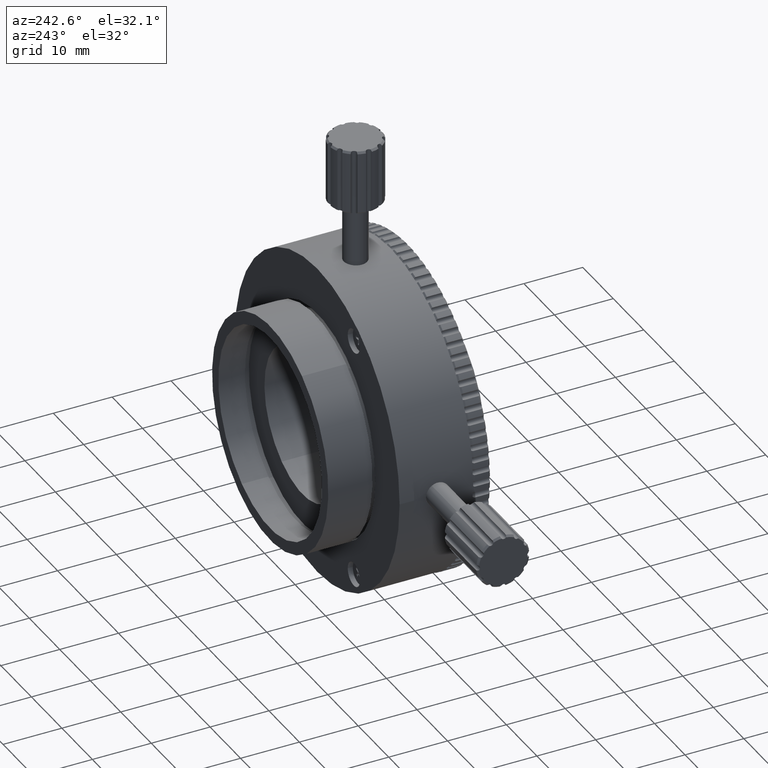
[diagram: clean part render]
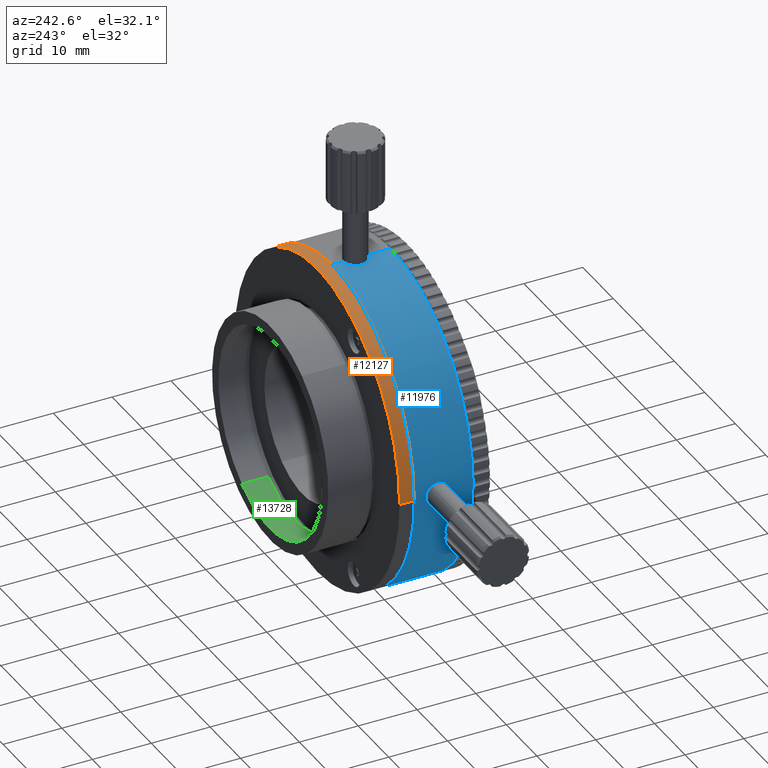
[diagram: same view with three faces highlighted in distinct colors, each labeled with its STEP entity id]
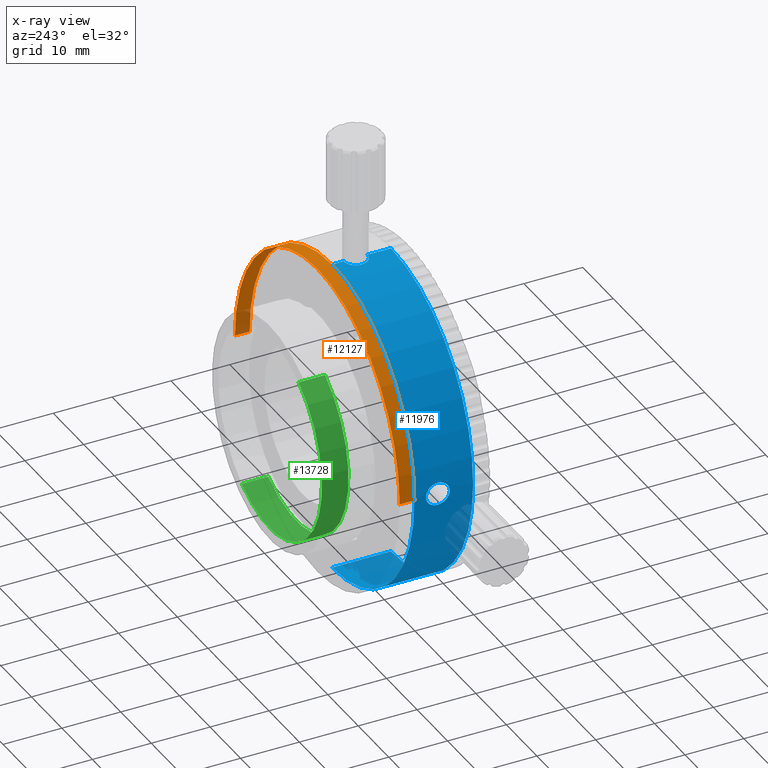
[diagram: x-ray of the same camera — body ghosted, the three highlighted faces saturated]
A machine part, auxiliary view with three faces highlighted in distinct colors.
The next image is the same camera in x-ray (body ghosted, the three faces saturated) — at least one of them is partly hidden behind the body in this view.
Their STEP definitions:

[orange] entity #12127 — the highlighted cylindrical surface (partial cylindrical patch) has radius 27 mm, axis along (-0, -1, 0).
#37 = LINE ( 'NONE', #7166, #9687 ) ;
#715 = ORIENTED_EDGE ( 'NONE', *, *, #22824, .T. ) ;
#917 = AXIS2_PLACEMENT_3D ( 'NONE', #7936, #3968, #7452 ) ;
#1451 = EDGE_CURVE ( 'NONE', #22187, #9804, #20660, .T. ) ;
#2031 = DIRECTION ( 'NONE',  ( -0.000000000000000000, -1.000000000000000000, 0.000000000000000000 ) ) ;
#2263 = ORIENTED_EDGE ( 'NONE', *, *, #11553, .F. ) ;
#3742 = CARTESIAN_POINT ( 'NONE',  ( 9.352963249104790933, 14.07014266807712843, 76.45373576090617007 ) ) ;
#3968 = DIRECTION ( 'NONE',  ( 0.000000000000000000, 1.000000000000000000, 0.000000000000000000 ) ) ;
#5603 = DIRECTION ( 'NONE',  ( 0.000000000000000000, 1.000000000000000000, 0.000000000000000000 ) ) ;
#5754 = VERTEX_POINT ( 'NONE', #17881 ) ;
#7166 = CARTESIAN_POINT ( 'NONE',  ( 36.35296324910479626, 16.57014266807712843, 76.45373576090617007 ) ) ;
#7452 = DIRECTION ( 'NONE',  ( 1.000000000000000000, 0.000000000000000000, 0.000000000000000000 ) ) ;
#7457 = FACE_OUTER_BOUND ( 'NONE', #21313, .T. ) ;
#7936 = CARTESIAN_POINT ( 'NONE',  ( 9.352963249104790933, 16.57014266807712843, 76.45373576090617007 ) ) ;
#7938 = DIRECTION ( 'NONE',  ( -1.000000000000000000, 0.000000000000000000, 0.000000000000000000 ) ) ;
#9687 = VECTOR ( 'NONE', #2031, 1000.000000000000000 ) ;
#9804 = VERTEX_POINT ( 'NONE', #10369 ) ;
#9957 = ORIENTED_EDGE ( 'NONE', *, *, #1451, .F. ) ;
#10369 = CARTESIAN_POINT ( 'NONE',  ( 36.35296324910479626, 16.57014266807712843, 76.45373576090617007 ) ) ;
#10830 = DIRECTION ( 'NONE',  ( 1.000000000000000000, 0.000000000000000000, 0.000000000000000000 ) ) ;
#11016 = VERTEX_POINT ( 'NONE', #22251 ) ;
#11553 = EDGE_CURVE ( 'NONE', #9804, #11016, #37, .T. ) ;
#12041 = AXIS2_PLACEMENT_3D ( 'NONE', #3742, #5603, #10830 ) ;
#12127 = ADVANCED_FACE ( 'NONE', ( #7457 ), #21933, .T. ) ;
#12212 = CARTESIAN_POINT ( 'NONE',  ( -17.64703675089520729, 16.57014266807712843, 76.45373576090617007 ) ) ;
#14536 = ORIENTED_EDGE ( 'NONE', *, *, #20774, .T. ) ;
#14561 = AXIS2_PLACEMENT_3D ( 'NONE', #20181, #18296, #7938 ) ;
#15342 = VECTOR ( 'NONE', #16810, 1000.000000000000000 ) ;
#16515 = CIRCLE ( 'NONE', #12041, 27.00000000000000355 ) ;
#16571 = LINE ( 'NONE', #18192, #15342 ) ;
#16810 = DIRECTION ( 'NONE',  ( -0.000000000000000000, -1.000000000000000000, 0.000000000000000000 ) ) ;
#17881 = CARTESIAN_POINT ( 'NONE',  ( -17.64703675089520729, 14.07014266807712843, 76.45373576090617007 ) ) ;
#18192 = CARTESIAN_POINT ( 'NONE',  ( -17.64703675089520729, 16.57014266807712843, 76.45373576090617007 ) ) ;
#18296 = DIRECTION ( 'NONE',  ( -0.000000000000000000, -1.000000000000000000, 0.000000000000000000 ) ) ;
#20181 = CARTESIAN_POINT ( 'NONE',  ( 9.352963249104790933, 16.57014266807712843, 76.45373576090617007 ) ) ;
#20660 = CIRCLE ( 'NONE', #917, 27.00000000000000355 ) ;
#20774 = EDGE_CURVE ( 'NONE', #5754, #11016, #16515, .T. ) ;
#21313 = EDGE_LOOP ( 'NONE', ( #2263, #9957, #715, #14536 ) ) ;
#21933 = CYLINDRICAL_SURFACE ( 'NONE', #14561, 27.00000000000000000 ) ;
#22187 = VERTEX_POINT ( 'NONE', #12212 ) ;
#22251 = CARTESIAN_POINT ( 'NONE',  ( 36.35296324910479626, 14.07014266807712843, 76.45373576090617007 ) ) ;
#22824 = EDGE_CURVE ( 'NONE', #22187, #5754, #16571, .T. ) ;

[blue] entity #11976 — the highlighted cylindrical surface (partial cylindrical patch) has radius 27 mm, axis along (-0, 1, -0).
#45 = CARTESIAN_POINT ( 'NONE',  ( 8.836905819048102018, 8.112423187109879308, 103.4491066711626104 ) ) ;
#156 = CARTESIAN_POINT ( 'NONE',  ( -17.62019859201290117, 11.67615785787208793, 77.67041712713097468 ) ) ;
#197 = CARTESIAN_POINT ( 'NONE',  ( 8.837341111493866919, 12.02791136276595196, 103.4491101502820385 ) ) ;
#235 = DIRECTION ( 'NONE',  ( -0.000000000000000000, 1.000000000000000000, -0.000000000000000000 ) ) ;
#268 = CARTESIAN_POINT ( 'NONE',  ( 9.092737570771120659, 8.058640918424838873, 103.4527847895251682 ) ) ;
#454 = CARTESIAN_POINT ( 'NONE',  ( 9.352963249104790933, 108.6097110134007835, 103.4537357609061559 ) ) ;
#530 = CARTESIAN_POINT ( 'NONE',  ( -17.61572663460999877, 8.555533150854472524, 75.15068692570514486 ) ) ;
#539 = CARTESIAN_POINT ( 'NONE',  ( 7.590175264902458530, 10.95341623767273909, 103.3961713067087231 ) ) ;
#888 = CARTESIAN_POINT ( 'NONE',  ( -17.57622445524602384, 10.07014266807589742, 78.40792346525842049 ) ) ;
#992 = CARTESIAN_POINT ( 'NONE',  ( -17.62035585593246978, 8.470517798672103638, 75.24900205073997483 ) ) ;
#1244 = CARTESIAN_POINT ( 'NONE',  ( 7.869217896915341903, 8.746010246381398900, 103.4130878537585403 ) ) ;
#1357 = CARTESIAN_POINT ( 'NONE',  ( 7.398775544753896760, 10.07014266807712843, 103.3829234652570506 ) ) ;
#1534 = EDGE_CURVE ( 'NONE', #1582, #14427, #4333, .T. ) ;
#1582 = VERTEX_POINT ( 'NONE', #15500 ) ;
#1692 = CARTESIAN_POINT ( 'NONE',  ( -17.57710269788503865, 10.32924944703174752, 78.39593351960775180 ) ) ;
#1790 = CARTESIAN_POINT ( 'NONE',  ( -17.59336406897872607, 11.07154933963422749, 74.75069287021214848 ) ) ;
#1909 = CARTESIAN_POINT ( 'NONE',  ( -17.64608480814147384, 12.08162670635805469, 76.19385433333690116 ) ) ;
#1921 = CARTESIAN_POINT ( 'NONE',  ( 9.352963249104790933, 8.045142668077135184, 103.4537357609061559 ) ) ;
#1951 = CARTESIAN_POINT ( 'NONE',  ( 9.352963249104787380, 12.09514266807717142, 103.4537357609061559 ) ) ;
#2085 = EDGE_CURVE ( 'NONE', #14427, #2381, #3922, .T. ) ;
#2381 = VERTEX_POINT ( 'NONE', #3083 ) ;
#2418 = CARTESIAN_POINT ( 'NONE',  ( -17.62901508228138425, 8.320658849020563963, 75.46168123660530114 ) ) ;
#2535 = CARTESIAN_POINT ( 'NONE',  ( 7.649574671091281530, 11.07090677270162793, 103.4000409973391754 ) ) ;
#2656 = CARTESIAN_POINT ( 'NONE',  ( 7.398775544753898536, 10.32935659784725679, 103.3829234652570364 ) ) ;
#3083 = CARTESIAN_POINT ( 'NONE',  ( 9.352963249104790933, 14.07014266807713199, 103.4537357609061559 ) ) ;
#3233 = CARTESIAN_POINT ( 'NONE',  ( 7.649676009424124068, 9.069224959368435535, 103.4000470662618056 ) ) ;
#3324 = CARTESIAN_POINT ( 'NONE',  ( -17.64704710832015522, 12.09529112459197542, 76.32547168644288149 ) ) ;
#3544 = EDGE_LOOP ( 'NONE', ( #3817, #22116, #20817, #12249, #21209, #4246, #9814 ) ) ;
#3566 = CARTESIAN_POINT ( 'NONE',  ( 8.713611123656759716, 8.152041904480007872, 103.4464266951772373 ) ) ;
#3809 = CARTESIAN_POINT ( 'NONE',  ( -17.59335345374037374, 9.069067794655811809, 74.75053299654189232 ) ) ;
#3815 = CARTESIAN_POINT ( 'NONE',  ( 8.359777557939574777, 11.81891524486320222, 103.4356714348146653 ) ) ;
#3817 = ORIENTED_EDGE ( 'NONE', *, *, #1534, .F. ) ;
#3922 = CIRCLE ( 'NONE', #6547, 26.99999999999999645 ) ;
#4004 = DIRECTION ( 'NONE',  ( -0.000000000000000000, 1.000000000000000000, -0.000000000000000000 ) ) ;
#4246 = ORIENTED_EDGE ( 'NONE', *, *, #6652, .T. ) ;
#4291 = CARTESIAN_POINT ( 'NONE',  ( 7.398775544753896760, 10.07014266807712843, 103.3829234652570506 ) ) ;
#4333 = LINE ( 'NONE', #11416, #6137 ) ;
#4349 = DIRECTION ( 'NONE',  ( 0.000000000000000000, 0.000000000000000000, 1.000000000000000000 ) ) ;
#4743 = CARTESIAN_POINT ( 'NONE',  ( 7.590021613791777533, 9.187187826884498421, 103.3961612552000702 ) ) ;
#4905 = AXIS2_PLACEMENT_3D ( 'NONE', #19364, #235, #5601 ) ;
#5040 = CARTESIAN_POINT ( 'NONE',  ( 9.352963249104790933, 4.070142668077137316, 103.4537357609061559 ) ) ;
#5170 = CARTESIAN_POINT ( 'NONE',  ( -17.62901781935710588, 11.81966654402616435, 75.46177111226572265 ) ) ;
#5294 = CARTESIAN_POINT ( 'NONE',  ( -17.58311274167399318, 10.71244267466998679, 78.31117158649716714 ) ) ;
#5438 = CARTESIAN_POINT ( 'NONE',  ( -17.57622445524609134, 9.940553402058112553, 74.49954805655519863 ) ) ;
#5544 = CARTESIAN_POINT ( 'NONE',  ( -17.58056920009981283, 9.552989911600672457, 74.56021514799572003 ) ) ;
#5601 = DIRECTION ( 'NONE',  ( 0.000000000000000000, 0.000000000000000000, 1.000000000000000000 ) ) ;
#5791 = CARTESIAN_POINT ( 'NONE',  ( -17.57622445524609134, 10.07014266807712843, 74.49954805655517021 ) ) ;
#5889 = B_SPLINE_CURVE_WITH_KNOTS ( 'NONE', 3,
 ( #1951, #16375, #9044, #197, #19783, #14402, #3815, #10904, #7764, #13345, #20476, #2535, #539, #16977, #2656, #4291 ),
 .UNSPECIFIED., .F., .F.,
 ( 4, 2, 2, 2, 2, 2, 2, 4 ),
 ( 0.007819380368100588979, 0.008209266136766264765, 0.008599151905431942286, 0.008989037674097618072, 0.009378923442763295593, 0.009768809211428971379, 0.01015869498009464716, 0.01093846651742600047 ),
 .UNSPECIFIED. ) ;
#6026 = CARTESIAN_POINT ( 'NONE',  ( -17.63301025200811978, 8.256453114652979153, 77.33204542145709581 ) ) ;
#6137 = VECTOR ( 'NONE', #20299, 1000.000000000000000 ) ;
#6142 = CARTESIAN_POINT ( 'NONE',  ( 9.352963249104790933, 8.045142668077135184, 103.4537357609061559 ) ) ;
#6206 = CARTESIAN_POINT ( 'NONE',  ( 9.352963249104790933, 4.070142668077137316, 76.45373576090617007 ) ) ;
#6248 = CARTESIAN_POINT ( 'NONE',  ( -17.59271011028185328, 9.064246826993766604, 78.16833192886973336 ) ) ;
#6547 = AXIS2_PLACEMENT_3D ( 'NONE', #12399, #4004, #21744 ) ;
#6652 = EDGE_CURVE ( 'NONE', #20109, #2381, #7803, .T. ) ;
#7133 = EDGE_CURVE ( 'NONE', #1582, #23069, #17449, .T. ) ;
#7160 = CARTESIAN_POINT ( 'NONE',  ( -17.64607107533994679, 12.08143173502458900, 76.71525487639429741 ) ) ;
#7268 = CARTESIAN_POINT ( 'NONE',  ( -17.62960555423194009, 11.83085609411661565, 77.45243875579011217 ) ) ;
#7355 = VECTOR ( 'NONE', #11301, 1000.000000000000000 ) ;
#7764 = CARTESIAN_POINT ( 'NONE',  ( 8.047621447926783134, 11.58252613100681927, 103.4223117652063308 ) ) ;
#7803 = LINE ( 'NONE', #454, #7355 ) ;
#7825 = DIRECTION ( 'NONE',  ( -0.000000000000000000, 1.000000000000000000, -0.000000000000000000 ) ) ;
#7882 = CARTESIAN_POINT ( 'NONE',  ( 9.352963249104787380, 12.09514266807717142, 103.4537357609061559 ) ) ;
#7997 = CARTESIAN_POINT ( 'NONE',  ( -17.63306146349438919, 8.255640410018482811, 75.57703044670600434 ) ) ;
#8096 = CARTESIAN_POINT ( 'NONE',  ( -17.58308965573528582, 9.428726556136831860, 78.31151457178545172 ) ) ;
#8473 = ORIENTED_EDGE ( 'NONE', *, *, #14910, .F. ) ;
#8530 = LINE ( 'NONE', #15982, #21040 ) ;
#8642 = CYLINDRICAL_SURFACE ( 'NONE', #4905, 26.99999999999999645 ) ;
#8684 = CARTESIAN_POINT ( 'NONE',  ( 7.398775544753895872, 9.940575445939726862, 103.3829234652570221 ) ) ;
#8813 = VERTEX_POINT ( 'NONE', #19936 ) ;
#8878 = CARTESIAN_POINT ( 'NONE',  ( -17.58948947741601287, 10.95398813999963217, 74.69120864829946527 ) ) ;
#9044 = CARTESIAN_POINT ( 'NONE',  ( 9.091122695494158634, 12.08134702989930709, 103.4527643385393390 ) ) ;
#9730 = CARTESIAN_POINT ( 'NONE',  ( -17.62031386946853573, 8.471282936468039537, 77.65938175341388217 ) ) ;
#9814 = ORIENTED_EDGE ( 'NONE', *, *, #2085, .F. ) ;
#10080 = CARTESIAN_POINT ( 'NONE',  ( 7.789139572329929706, 8.849127152528515339, 103.4085003841402965 ) ) ;
#10638 = CARTESIAN_POINT ( 'NONE',  ( -17.59266858345749185, 11.07444669520516989, 78.16894876598736630 ) ) ;
#10648 = CARTESIAN_POINT ( 'NONE',  ( 8.475923369911505745, 8.255815747838509466, 103.4397494728958975 ) ) ;
#10724 = CARTESIAN_POINT ( 'NONE',  ( 9.352963249104794485, 14.07014266807713199, 49.45373576090617718 ) ) ;
#10897 = CARTESIAN_POINT ( 'NONE',  ( -17.60180892100918015, 8.848947312061079984, 74.89004117313656650 ) ) ;
#10904 = CARTESIAN_POINT ( 'NONE',  ( 8.147628117173203677, 11.66925725197649655, 103.4270269532653685 ) ) ;
#11111 = ORIENTED_EDGE ( 'NONE', *, *, #11298, .F. ) ;
#11112 = CARTESIAN_POINT ( 'NONE',  ( -17.64239538185961109, 8.112604573030683497, 76.97043344162263168 ) ) ;
#11298 = EDGE_CURVE ( 'NONE', #22537, #8813, #14067, .T. ) ;
#11301 = DIRECTION ( 'NONE',  ( -0.000000000000000000, 1.000000000000000000, -0.000000000000000000 ) ) ;
#11416 = CARTESIAN_POINT ( 'NONE',  ( 9.352963249104794485, 108.6097110134007835, 49.45373576090617718 ) ) ;
#11601 = CARTESIAN_POINT ( 'NONE',  ( -17.64703928364118468, 8.045106365383368541, 76.32470903997410971 ) ) ;
#11946 = CARTESIAN_POINT ( 'NONE',  ( 8.049703750713037564, 8.555729645818306750, 103.4224153766451622 ) ) ;
#11976 = ADVANCED_FACE ( 'NONE', ( #12229, #22991 ), #8642, .T. ) ;
#12155 = CARTESIAN_POINT ( 'NONE',  ( -17.64702622034220525, 12.09499173005971251, 76.58632393384596071 ) ) ;
#12229 = FACE_OUTER_BOUND ( 'NONE', #3544, .T. ) ;
#12249 = ORIENTED_EDGE ( 'NONE', *, *, #12753, .F. ) ;
#12260 = CARTESIAN_POINT ( 'NONE',  ( -17.61565465495326777, 11.58332957555449916, 75.14925190446615488 ) ) ;
#12399 = CARTESIAN_POINT ( 'NONE',  ( 9.352963249104790933, 14.07014266807713199, 76.45373576090617007 ) ) ;
#12504 = CARTESIAN_POINT ( 'NONE',  ( -17.57622445524610200, 10.20018003064514289, 78.40792346525711309 ) ) ;
#12533 = CARTESIAN_POINT ( 'NONE',  ( -17.57711719243554072, 9.809375439857699774, 74.51173732732264909 ) ) ;
#12650 = CARTESIAN_POINT ( 'NONE',  ( -17.58309701968739702, 9.428535954966175581, 74.59607232472626492 ) ) ;
#12753 = EDGE_CURVE ( 'NONE', #19293, #14666, #13169, .T. ) ;
#13169 = B_SPLINE_CURVE_WITH_KNOTS ( 'NONE', 3,
 ( #1357, #8684, #19189, #15808, #20713, #4743, #3233, #10080, #1244, #11946, #19071, #19531, #10648, #3566, #45, #268, #16136, #1921 ),
 .UNSPECIFIED., .F., .F.,
 ( 4, 2, 2, 2, 2, 2, 2, 2, 4 ),
 ( 0.01093846651742600047, 0.01132823273131516179, 0.01171799894520432310, 0.01210776515909348441, 0.01249753137298264573, 0.01288729758687180704, 0.01327706380076096836, 0.01366683001465012967, 0.01405659622853929099 ),
 .UNSPECIFIED. ) ;
#13337 = CARTESIAN_POINT ( 'NONE',  ( -17.60171694560570543, 8.841367161872854652, 78.02783478019213703 ) ) ;
#13345 = CARTESIAN_POINT ( 'NONE',  ( 7.868875292780542097, 11.39374588255110687, 103.4130660911556561 ) ) ;
#14020 = CARTESIAN_POINT ( 'NONE',  ( -17.57622445524602384, 10.07014266807589742, 78.40792346525842049 ) ) ;
#14067 = B_SPLINE_CURVE_WITH_KNOTS ( 'NONE', 3,
 ( #5791, #5438, #12533, #5544, #12650, #19778, #3809, #10897, #22336, #530, #992, #2418, #7997, #15107, #20243, #18233, #11601, #20359, #21997, #11112, #16970, #6026, #16612, #9730, #14856, #13337, #6248, #8096, #22124, #19999, #15208, #888 ),
 .UNSPECIFIED., .F., .F.,
 ( 4, 2, 2, 2, 2, 2, 2, 2, 2, 2, 2, 2, 2, 2, 2, 4 ),
 ( 0.01093846651742599353, 0.01132829904407646991, 0.01171813157072694456, 0.01210796409737742094, 0.01249779662402789558, 0.01288762915067837196, 0.01327746167732884661, 0.01366729420397932299, 0.01405712673062979937, 0.01444695925728027575, 0.01483679178393075039, 0.01522662431058122504, 0.01561645683723170142, 0.01639612189053268193, 0.01678595441718317219, 0.01717578694383366245 ),
 .UNSPECIFIED. ) ;
#14108 = DIRECTION ( 'NONE',  ( -0.000000000000000000, 1.000000000000000000, -0.000000000000000000 ) ) ;
#14259 = CARTESIAN_POINT ( 'NONE',  ( -17.63975610702292585, 11.98869087104549536, 75.81532088244173906 ) ) ;
#14368 = CARTESIAN_POINT ( 'NONE',  ( -17.63965171565371648, 11.98709931655587901, 77.09626520691965368 ) ) ;
#14402 = CARTESIAN_POINT ( 'NONE',  ( 8.472694564413819407, 11.88289858600829163, 103.4396499460739847 ) ) ;
#14427 = VERTEX_POINT ( 'NONE', #10724 ) ;
#14666 = VERTEX_POINT ( 'NONE', #6142 ) ;
#14856 = CARTESIAN_POINT ( 'NONE',  ( -17.61569254222455783, 8.556190423601341521, 77.75747953911050558 ) ) ;
#14910 = EDGE_CURVE ( 'NONE', #8813, #22537, #21517, .T. ) ;
#14977 = CARTESIAN_POINT ( 'NONE',  ( -17.57622445524609134, 10.07014266807712843, 74.49954805655517021 ) ) ;
#15107 = CARTESIAN_POINT ( 'NONE',  ( -17.63973712892519785, 8.151899520193106596, 75.81477699943526716 ) ) ;
#15208 = CARTESIAN_POINT ( 'NONE',  ( -17.57622445524611621, 9.940212862003832583, 78.40792346525688572 ) ) ;
#15500 = CARTESIAN_POINT ( 'NONE',  ( 9.352963249104794485, 4.070142668077137316, 49.45373576090617718 ) ) ;
#15808 = CARTESIAN_POINT ( 'NONE',  ( 7.459422155518850239, 9.553075853624747538, 103.3872667629048863 ) ) ;
#15982 = CARTESIAN_POINT ( 'NONE',  ( 9.352963249104790933, 108.6097110134007835, 103.4537357609061559 ) ) ;
#16136 = CARTESIAN_POINT ( 'NONE',  ( 9.223429704356808756, 8.045142668077135184, 103.4537357609061843 ) ) ;
#16308 = AXIS2_PLACEMENT_3D ( 'NONE', #6206, #7825, #4349 ) ;
#16375 = CARTESIAN_POINT ( 'NONE',  ( 9.222610526826452215, 12.09514266807712346, 103.4537357609061559 ) ) ;
#16612 = CARTESIAN_POINT ( 'NONE',  ( -17.62895741459088228, 8.321618794710673228, 77.44732424344488209 ) ) ;
#16970 = CARTESIAN_POINT ( 'NONE',  ( -17.63971034588647413, 8.152299057947075767, 77.09386532345348542 ) ) ;
#16977 = CARTESIAN_POINT ( 'NONE',  ( 7.448047341056914128, 10.59146278588555923, 103.3866211215793669 ) ) ;
#17029 = EDGE_CURVE ( 'NONE', #20109, #19293, #5889, .T. ) ;
#17449 = CIRCLE ( 'NONE', #16308, 26.99999999999999645 ) ;
#17653 = CARTESIAN_POINT ( 'NONE',  ( -17.62037214133870222, 11.67005667281796022, 75.24937943587738687 ) ) ;
#17753 = CARTESIAN_POINT ( 'NONE',  ( -17.60640186435709964, 11.39450773820317941, 74.97027276310427624 ) ) ;
#17979 = CARTESIAN_POINT ( 'NONE',  ( -17.64239856376486770, 12.02772678488805447, 76.97015351095851088 ) ) ;
#18233 = CARTESIAN_POINT ( 'NONE',  ( -17.64609065282499856, 8.058570949757491775, 76.19400000745680757 ) ) ;
#18332 = CARTESIAN_POINT ( 'NONE',  ( 7.398775544753896760, 10.07014266807712843, 103.3829234652570506 ) ) ;
#19071 = CARTESIAN_POINT ( 'NONE',  ( 8.147990092376309335, 8.470713586032003306, 103.4270440445965136 ) ) ;
#19189 = CARTESIAN_POINT ( 'NONE',  ( 7.410960559162220740, 9.809420336460318524, 103.3838158881724354 ) ) ;
#19293 = VERTEX_POINT ( 'NONE', #18332 ) ;
#19364 = CARTESIAN_POINT ( 'NONE',  ( 9.352963249104790933, 108.6097110134007835, 76.45373576090617007 ) ) ;
#19520 = CARTESIAN_POINT ( 'NONE',  ( -17.63299561735048115, 11.88361146376673005, 75.57481832809429534 ) ) ;
#19531 = CARTESIAN_POINT ( 'NONE',  ( 8.360605537193929848, 8.320845483943234200, 103.4357028175728175 ) ) ;
#19623 = CARTESIAN_POINT ( 'NONE',  ( -17.57622445524609134, 10.32953574930870921, 74.49954805655517021 ) ) ;
#19778 = CARTESIAN_POINT ( 'NONE',  ( -17.58946648400573309, 9.187046596976022883, 74.69085847574800141 ) ) ;
#19783 = CARTESIAN_POINT ( 'NONE',  ( 8.712910489458785435, 11.98809623425522020, 103.4464156914235531 ) ) ;
#19936 = CARTESIAN_POINT ( 'NONE',  ( -17.57622445524602384, 10.07014266807589742, 78.40792346525842049 ) ) ;
#19999 = CARTESIAN_POINT ( 'NONE',  ( -17.57712832792579505, 9.808446938074830257, 78.39557855525077912 ) ) ;
#20109 = VERTEX_POINT ( 'NONE', #7882 ) ;
#20243 = CARTESIAN_POINT ( 'NONE',  ( -17.64241592196053077, 8.112301110346150423, 75.93810248876174285 ) ) ;
#20299 = DIRECTION ( 'NONE',  ( -0.000000000000000000, 1.000000000000000000, -0.000000000000000000 ) ) ;
#20359 = CARTESIAN_POINT ( 'NONE',  ( -17.64703420778803533, 8.045179119281156588, 76.58382031334988937 ) ) ;
#20476 = CARTESIAN_POINT ( 'NONE',  ( 7.789297428491504860, 11.29140098013372651, 103.4085098787534491 ) ) ;
#20713 = CARTESIAN_POINT ( 'NONE',  ( 7.495267429140077375, 9.428641200053816007, 103.3897937680754069 ) ) ;
#20817 = ORIENTED_EDGE ( 'NONE', *, *, #21831, .T. ) ;
#21040 = VECTOR ( 'NONE', #14108, 1000.000000000000000 ) ;
#21153 = CARTESIAN_POINT ( 'NONE',  ( -17.60178341104112221, 11.30015839579444048, 78.02644226289527296 ) ) ;
#21209 = ORIENTED_EDGE ( 'NONE', *, *, #17029, .F. ) ;
#21268 = CARTESIAN_POINT ( 'NONE',  ( -17.64244457731922822, 12.02840541877076852, 75.93983826243660928 ) ) ;
#21386 = CARTESIAN_POINT ( 'NONE',  ( -17.57992736389598321, 10.59181985723011010, 74.54888768243296227 ) ) ;
#21494 = CARTESIAN_POINT ( 'NONE',  ( -17.60184147355056439, 11.29212972605029996, 74.89059360986723846 ) ) ;
#21517 = B_SPLINE_CURVE_WITH_KNOTS ( 'NONE', 3,
 ( #14020, #12504, #1692, #22919, #5294, #10638, #21153, #156, #7268, #14368, #17979, #7160, #12155, #3324, #1909, #21268, #14259, #19520, #5170, #17653, #12260, #17753, #21494, #1790, #8878, #21386, #19623, #22169 ),
 .UNSPECIFIED., .F., .F.,
 ( 4, 2, 2, 2, 2, 2, 2, 2, 2, 2, 2, 2, 2, 4 ),
 ( 0.004695982808176745599, 0.005086138040004835846, 0.005476293271832926093, 0.006256603735489107455, 0.007036914199145288817, 0.007427069430973360850, 0.007817224662801434618, 0.008207379894629506650, 0.008597535126457578683, 0.008987690358285650716, 0.009377845590113722749, 0.009768000821941794781, 0.01015815605376986855, 0.01093846651742599353 ),
 .UNSPECIFIED. ) ;
#21744 = DIRECTION ( 'NONE',  ( 0.000000000000000000, 0.000000000000000000, 1.000000000000000000 ) ) ;
#21821 = EDGE_LOOP ( 'NONE', ( #8473, #11111 ) ) ;
#21831 = EDGE_CURVE ( 'NONE', #23069, #14666, #8530, .T. ) ;
#21997 = CARTESIAN_POINT ( 'NONE',  ( -17.64607943594618078, 8.058731849379459078, 76.71461542365859998 ) ) ;
#22116 = ORIENTED_EDGE ( 'NONE', *, *, #7133, .T. ) ;
#22124 = CARTESIAN_POINT ( 'NONE',  ( -17.58056641052543512, 9.553298796966751993, 78.34729480646575439 ) ) ;
#22169 = CARTESIAN_POINT ( 'NONE',  ( -17.57622445524609134, 10.07014266807712843, 74.49954805655517021 ) ) ;
#22336 = CARTESIAN_POINT ( 'NONE',  ( -17.60639761890047694, 8.745818289739895945, 74.97014825099452651 ) ) ;
#22537 = VERTEX_POINT ( 'NONE', #14977 ) ;
#22919 = CARTESIAN_POINT ( 'NONE',  ( -17.58053636419039734, 10.58543259738809184, 78.34772166997586851 ) ) ;
#22991 = FACE_BOUND ( 'NONE', #21821, .T. ) ;
#23069 = VERTEX_POINT ( 'NONE', #5040 ) ;

[green] entity #13728 — the highlighted cylindrical surface (partial cylindrical patch) has radius 17 mm, axis along (0, 1, 0).
#686 = CARTESIAN_POINT ( 'NONE',  ( 0.05491289283697867174, 24.57014266807713909, 90.68561053453694853 ) ) ;
#1030 = CARTESIAN_POINT ( 'NONE',  ( 18.65101360537260078, 24.57014266807713909, 62.22186098727538450 ) ) ;
#1518 = AXIS2_PLACEMENT_3D ( 'NONE', #6853, #19542, #20834 ) ;
#2561 = VERTEX_POINT ( 'NONE', #5485 ) ;
#2699 = AXIS2_PLACEMENT_3D ( 'NONE', #22547, #4706, #3407 ) ;
#3033 = DIRECTION ( 'NONE',  ( 0.000000000000000000, 1.000000000000000000, 0.000000000000000000 ) ) ;
#3407 = DIRECTION ( 'NONE',  ( 0.5469441386039886055, 0.000000000000000000, -0.8371691043312222691 ) ) ;
#3710 = VECTOR ( 'NONE', #3033, 1000.000000000000000 ) ;
#4194 = CYLINDRICAL_SURFACE ( 'NONE', #13399, 17.00000000000000711 ) ;
#4706 = DIRECTION ( 'NONE',  ( 0.000000000000000000, 1.000000000000000000, 0.000000000000000000 ) ) ;
#4742 = ORIENTED_EDGE ( 'NONE', *, *, #5499, .F. ) ;
#5485 = CARTESIAN_POINT ( 'NONE',  ( 0.05491289283697867174, 20.07014266807714264, 90.68561053453694853 ) ) ;
#5499 = EDGE_CURVE ( 'NONE', #14177, #2561, #22774, .T. ) ;
#5604 = DIRECTION ( 'NONE',  ( 0.000000000000000000, 1.000000000000000000, 0.000000000000000000 ) ) ;
#6853 = CARTESIAN_POINT ( 'NONE',  ( 9.352963249104790933, 20.07014266807714264, 76.45373576090617007 ) ) ;
#8862 = VERTEX_POINT ( 'NONE', #686 ) ;
#8946 = EDGE_CURVE ( 'NONE', #14177, #10690, #10336, .T. ) ;
#10336 = LINE ( 'NONE', #1030, #3710 ) ;
#10690 = VERTEX_POINT ( 'NONE', #18352 ) ;
#11180 = CARTESIAN_POINT ( 'NONE',  ( 0.05491289283698040646, 24.57014266807713909, 90.68561053453694853 ) ) ;
#11215 = CIRCLE ( 'NONE', #2699, 17.00000000000000711 ) ;
#11291 = CARTESIAN_POINT ( 'NONE',  ( 9.352963249104790933, 24.57014266807713909, 76.45373576090617007 ) ) ;
#12707 = LINE ( 'NONE', #11180, #17956 ) ;
#13399 = AXIS2_PLACEMENT_3D ( 'NONE', #11291, #16407, #19929 ) ;
#13728 = ADVANCED_FACE ( 'NONE', ( #20159 ), #4194, .F. ) ;
#14177 = VERTEX_POINT ( 'NONE', #14758 ) ;
#14595 = ORIENTED_EDGE ( 'NONE', *, *, #16711, .F. ) ;
#14758 = CARTESIAN_POINT ( 'NONE',  ( 18.65101360537260078, 20.07014266807714264, 62.22186098727538450 ) ) ;
#16407 = DIRECTION ( 'NONE',  ( 0.000000000000000000, 1.000000000000000000, 0.000000000000000000 ) ) ;
#16711 = EDGE_CURVE ( 'NONE', #2561, #8862, #12707, .T. ) ;
#17072 = ORIENTED_EDGE ( 'NONE', *, *, #19393, .T. ) ;
#17956 = VECTOR ( 'NONE', #5604, 1000.000000000000000 ) ;
#18352 = CARTESIAN_POINT ( 'NONE',  ( 18.65101360537260078, 24.57014266807713909, 62.22186098727538450 ) ) ;
#19393 = EDGE_CURVE ( 'NONE', #10690, #8862, #11215, .T. ) ;
#19542 = DIRECTION ( 'NONE',  ( 0.000000000000000000, 1.000000000000000000, 0.000000000000000000 ) ) ;
#19929 = DIRECTION ( 'NONE',  ( 0.5469441386039886055, 0.000000000000000000, -0.8371691043312222691 ) ) ;
#20159 = FACE_OUTER_BOUND ( 'NONE', #22864, .T. ) ;
#20616 = ORIENTED_EDGE ( 'NONE', *, *, #8946, .T. ) ;
#20834 = DIRECTION ( 'NONE',  ( 0.5469441386039886055, 0.000000000000000000, -0.8371691043312222691 ) ) ;
#22547 = CARTESIAN_POINT ( 'NONE',  ( 9.352963249104790933, 24.57014266807713909, 76.45373576090617007 ) ) ;
#22774 = CIRCLE ( 'NONE', #1518, 17.00000000000000711 ) ;
#22864 = EDGE_LOOP ( 'NONE', ( #14595, #4742, #20616, #17072 ) ) ;